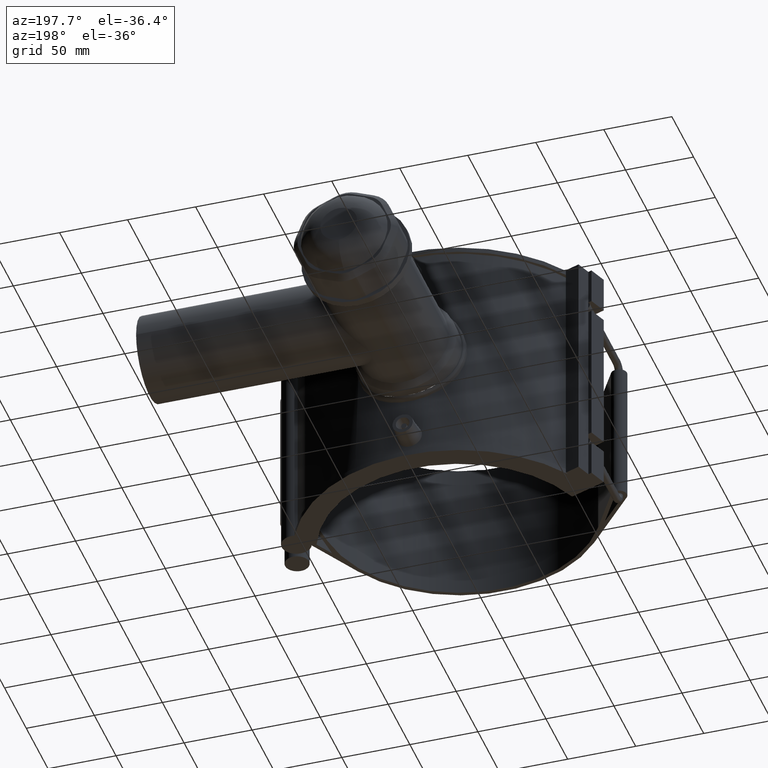
[diagram: clean part render]
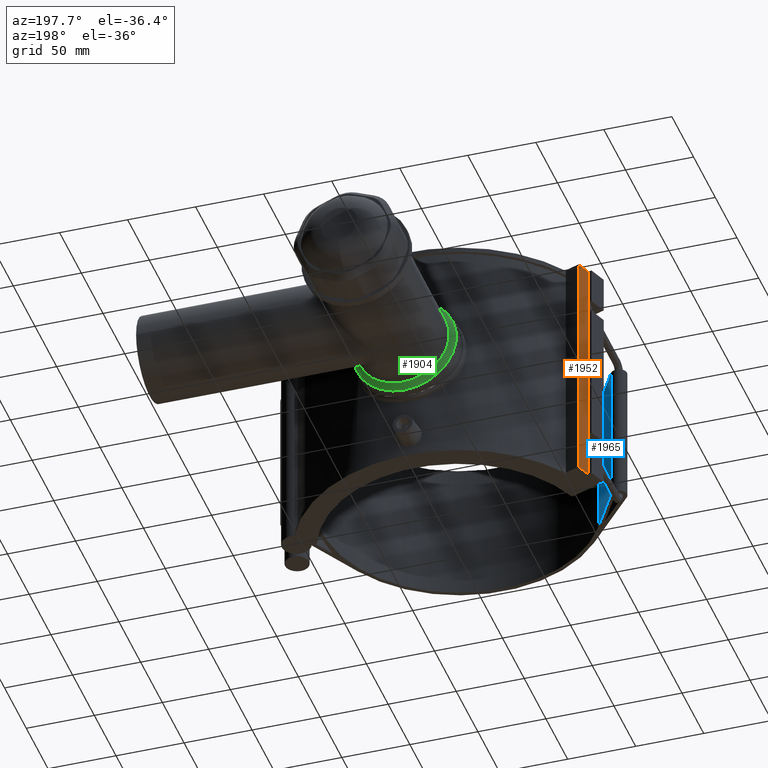
[diagram: same view with three faces highlighted in distinct colors, each labeled with its STEP entity id]
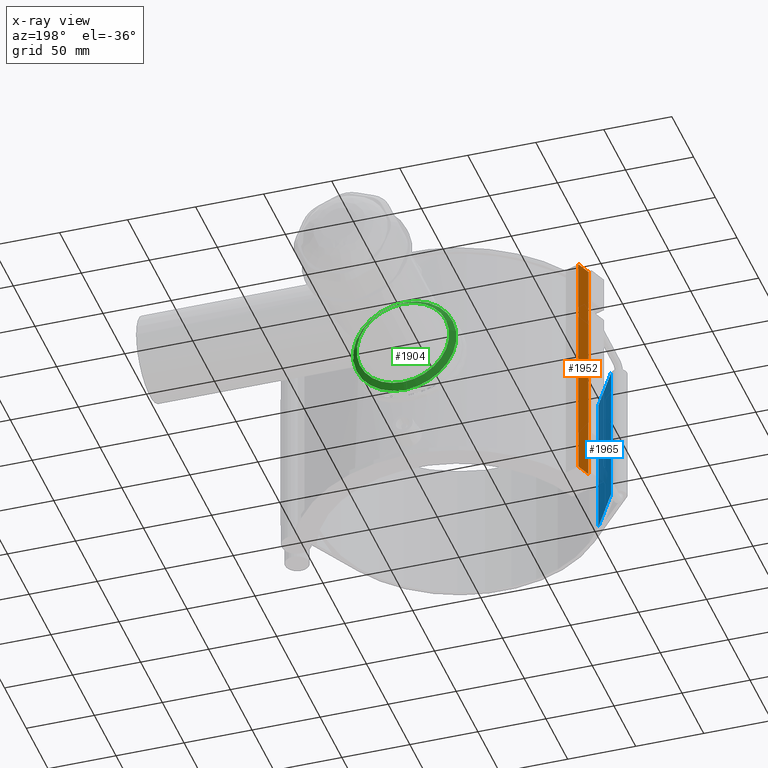
[diagram: x-ray of the same camera — body ghosted, the three highlighted faces saturated]
A machine part, auxiliary view with three faces highlighted in distinct colors.
The next image is the same camera in x-ray (body ghosted, the three faces saturated) — at least one of them is partly hidden behind the body in this view.
Their STEP definitions:

[orange] entity #1952 — the highlighted planar face has unit normal (-0.9397, 0.342, 0).
#116=LINE('',#3422,#277);
#117=LINE('',#3426,#278);
#127=LINE('',#3468,#288);
#128=LINE('',#3470,#289);
#130=LINE('',#3474,#291);
#148=LINE('',#3517,#309);
#152=LINE('',#3530,#313);
#155=LINE('',#3535,#316);
#174=LINE('',#3572,#335);
#175=LINE('',#3575,#336);
#176=LINE('',#3577,#337);
#177=LINE('',#3578,#338);
#277=VECTOR('',#2503,4.53640788952946);
#278=VECTOR('',#2506,4.53640788952951);
#288=VECTOR('',#2538,3.69179605523528);
#289=VECTOR('',#2541,0.17179605523526);
#291=VECTOR('',#2545,0.171796055235234);
#309=VECTOR('',#2585,3.69179605523522);
#313=VECTOR('',#2601,26.6);
#316=VECTOR('',#2606,106.);
#335=VECTOR('',#2637,26.6);
#336=VECTOR('',#2640,11.2);
#337=VECTOR('',#2641,176.);
#338=VECTOR('',#2642,11.2);
#531=FACE_OUTER_BOUND('',#673,.T.);
#673=EDGE_LOOP('',(#1635,#1636,#1637,#1638,#1639,#1640,#1641,#1642,#1643,
#1644,#1645,#1646));
#919=VERTEX_POINT('',#3414);
#920=VERTEX_POINT('',#3416);
#922=VERTEX_POINT('',#3424);
#923=VERTEX_POINT('',#3425);
#931=VERTEX_POINT('',#3454);
#936=VERTEX_POINT('',#3466);
#937=VERTEX_POINT('',#3472);
#951=VERTEX_POINT('',#3513);
#954=VERTEX_POINT('',#3529);
#967=VERTEX_POINT('',#3570);
#968=VERTEX_POINT('',#3574);
#969=VERTEX_POINT('',#3576);
#1138=EDGE_CURVE('',#920,#919,#116,.T.);
#1139=EDGE_CURVE('',#922,#923,#117,.T.);
#1157=EDGE_CURVE('',#919,#936,#127,.T.);
#1158=EDGE_CURVE('',#931,#920,#128,.T.);
#1160=EDGE_CURVE('',#923,#937,#130,.T.);
#1182=EDGE_CURVE('',#951,#922,#148,.T.);
#1188=EDGE_CURVE('',#954,#931,#152,.T.);
#1191=EDGE_CURVE('',#936,#951,#155,.T.);
#1210=EDGE_CURVE('',#937,#967,#174,.T.);
#1211=EDGE_CURVE('',#967,#968,#175,.T.);
#1212=EDGE_CURVE('',#969,#968,#176,.T.);
#1213=EDGE_CURVE('',#954,#969,#177,.T.);
#1635=ORIENTED_EDGE('',*,*,#1211,.T.);
#1636=ORIENTED_EDGE('',*,*,#1212,.F.);
#1637=ORIENTED_EDGE('',*,*,#1213,.F.);
#1638=ORIENTED_EDGE('',*,*,#1188,.T.);
#1639=ORIENTED_EDGE('',*,*,#1158,.T.);
#1640=ORIENTED_EDGE('',*,*,#1138,.T.);
#1641=ORIENTED_EDGE('',*,*,#1157,.T.);
#1642=ORIENTED_EDGE('',*,*,#1191,.T.);
#1643=ORIENTED_EDGE('',*,*,#1182,.T.);
#1644=ORIENTED_EDGE('',*,*,#1139,.T.);
#1645=ORIENTED_EDGE('',*,*,#1160,.T.);
#1646=ORIENTED_EDGE('',*,*,#1210,.T.);
#1852=PLANE('',#2142);
#1952=ADVANCED_FACE('',(#531),#1852,.T.);
#2142=AXIS2_PLACEMENT_3D('',#3573,#2638,#2639);
#2503=DIRECTION('',(0.,0.,1.));
#2506=DIRECTION('',(0.,0.,1.));
#2538=DIRECTION('',(0.,0.,1.));
#2541=DIRECTION('',(0.,0.,1.));
#2545=DIRECTION('',(0.,0.,1.));
#2585=DIRECTION('',(0.,0.,1.));
#2601=DIRECTION('',(0.,0.,1.));
#2606=DIRECTION('',(0.,0.,1.));
#2637=DIRECTION('',(0.,0.,1.));
#2638=DIRECTION('center_axis',(-0.939692620785908,0.34202014332567,0.));
#2639=DIRECTION('ref_axis',(-0.342020143325671,-0.939692620785908,0.));
#2640=DIRECTION('',(0.34202014332567,0.939692620785908,0.));
#2641=DIRECTION('',(0.,0.,1.));
#2642=DIRECTION('',(0.34202014332567,0.939692620785908,0.));
#3414=CARTESIAN_POINT('',(-112.861234115836,55.9766186353763,-56.6917960552353));
#3416=CARTESIAN_POINT('',(-112.861234115836,55.9766186353763,-61.2282039447647));
#3422=CARTESIAN_POINT('',(-112.861234115836,55.9766186353764,-88.));
#3424=CARTESIAN_POINT('',(-112.861234115836,55.9766186353764,56.6917960552352));
#3425=CARTESIAN_POINT('',(-112.861234115836,55.9766186353764,61.2282039447648));
#3426=CARTESIAN_POINT('',(-112.861234115836,55.9766186353764,-88.));
#3454=CARTESIAN_POINT('',(-112.861234115836,55.9766186353764,-61.4));
#3466=CARTESIAN_POINT('',(-112.861234115836,55.9766186353764,-53.));
#3468=CARTESIAN_POINT('',(-112.861234115836,55.9766186353764,-88.));
#3470=CARTESIAN_POINT('',(-112.861234115836,55.9766186353764,-88.));
#3472=CARTESIAN_POINT('',(-112.861234115836,55.9766186353764,61.4));
#3474=CARTESIAN_POINT('',(-112.861234115836,55.9766186353764,-88.));
#3513=CARTESIAN_POINT('',(-112.861234115836,55.9766186353764,53.));
#3517=CARTESIAN_POINT('',(-112.861234115836,55.9766186353764,-88.));
#3529=CARTESIAN_POINT('',(-112.861234115836,55.9766186353764,-88.));
#3530=CARTESIAN_POINT('',(-112.861234115836,55.9766186353764,-88.));
#3535=CARTESIAN_POINT('',(-112.861234115836,55.9766186353764,-88.));
#3570=CARTESIAN_POINT('',(-112.861234115836,55.9766186353764,88.));
#3572=CARTESIAN_POINT('',(-112.861234115836,55.9766186353764,-88.));
#3573=CARTESIAN_POINT('Origin',(-109.030608510589,66.5011759881785,-88.));
#3574=CARTESIAN_POINT('',(-109.030608510589,66.5011759881785,88.));
#3575=CARTESIAN_POINT('',(-111.374306140513,60.0619196719329,88.));
#3576=CARTESIAN_POINT('',(-109.030608510589,66.5011759881785,-88.));
#3577=CARTESIAN_POINT('',(-109.030608510589,66.5011759881785,-88.));
#3578=CARTESIAN_POINT('',(-112.861234115836,55.9766186353764,-88.));

[blue] entity #1965 — the highlighted planar face has unit normal (0.8593, 0.5115, 0).
#104=LINE('',#3356,#265);
#109=LINE('',#3376,#270);
#193=LINE('',#3619,#354);
#194=LINE('',#3620,#355);
#265=VECTOR('',#2451,39.7006283693455);
#270=VECTOR('',#2468,39.7006283693455);
#354=VECTOR('',#2696,105.6);
#355=VECTOR('',#2697,105.6);
#544=FACE_OUTER_BOUND('',#686,.T.);
#686=EDGE_LOOP('',(#1707,#1708,#1709,#1710));
#894=VERTEX_POINT('',#3353);
#895=VERTEX_POINT('',#3355);
#903=VERTEX_POINT('',#3373);
#904=VERTEX_POINT('',#3375);
#1108=EDGE_CURVE('',#894,#895,#104,.T.);
#1118=EDGE_CURVE('',#903,#904,#109,.T.);
#1235=EDGE_CURVE('',#894,#904,#193,.T.);
#1236=EDGE_CURVE('',#895,#903,#194,.T.);
#1707=ORIENTED_EDGE('',*,*,#1235,.T.);
#1708=ORIENTED_EDGE('',*,*,#1118,.F.);
#1709=ORIENTED_EDGE('',*,*,#1236,.F.);
#1710=ORIENTED_EDGE('',*,*,#1108,.F.);
#1861=PLANE('',#2161);
#1965=ADVANCED_FACE('',(#544),#1861,.T.);
#2161=AXIS2_PLACEMENT_3D('',#3618,#2694,#2695);
#2451=DIRECTION('',(0.511479804338621,-0.859295298342617,0.));
#2468=DIRECTION('',(-0.511479804338621,0.859295298342617,0.));
#2694=DIRECTION('center_axis',(0.859295298342616,0.511479804338621,0.));
#2695=DIRECTION('ref_axis',(-0.511479804338621,0.859295298342616,0.));
#2696=DIRECTION('',(0.,0.,1.));
#2697=DIRECTION('',(0.,0.,1.));
#3353=CARTESIAN_POINT('',(-106.235599464735,-17.033417134836,-52.8));
#3355=CARTESIAN_POINT('',(-85.9295298342617,-51.1479804338621,-52.8));
#3356=CARTESIAN_POINT('',(-85.9295298342617,-51.1479804338621,-52.8));
#3373=CARTESIAN_POINT('',(-85.9295298342617,-51.1479804338621,52.8));
#3375=CARTESIAN_POINT('',(-106.235599464735,-17.033417134836,52.8));
#3376=CARTESIAN_POINT('',(-85.9295298342617,-51.1479804338621,52.8));
#3618=CARTESIAN_POINT('Origin',(-85.9295298342617,-51.1479804338621,0.));
#3619=CARTESIAN_POINT('',(-106.235599464735,-17.033417134836,0.));
#3620=CARTESIAN_POINT('',(-85.9295298342617,-51.1479804338621,0.));

[green] entity #1904 — the highlighted conical surface has half-angle 45 deg.
#36=CONICAL_SURFACE('',#2052,36.,45.);
#368=FACE_BOUND('',#612,.T.);
#483=FACE_OUTER_BOUND('',#611,.T.);
#611=EDGE_LOOP('',(#1391));
#612=EDGE_LOOP('',(#1392));
#734=CIRCLE('',#2000,38.);
#758=CIRCLE('',#2053,34.);
#821=VERTEX_POINT('',#2935);
#869=VERTEX_POINT('',#3216);
#999=EDGE_CURVE('',#821,#821,#734,.T.);
#1071=EDGE_CURVE('',#869,#869,#758,.T.);
#1391=ORIENTED_EDGE('',*,*,#999,.T.);
#1392=ORIENTED_EDGE('',*,*,#1071,.F.);
#1904=ADVANCED_FACE('',(#483,#368),#36,.T.);
#2000=AXIS2_PLACEMENT_3D('',#2936,#2218,#2219);
#2052=AXIS2_PLACEMENT_3D('',#3215,#2367,#2368);
#2053=AXIS2_PLACEMENT_3D('',#3217,#2369,#2370);
#2218=DIRECTION('center_axis',(0.,1.,3.06161699786838E-16));
#2219=DIRECTION('ref_axis',(0.,0.,-1.));
#2367=DIRECTION('center_axis',(0.,-1.,-3.06161699786838E-16));
#2368=DIRECTION('ref_axis',(0.,1.44576358232674E-16,-1.));
#2369=DIRECTION('center_axis',(0.,1.,3.06161699786838E-16));
#2370=DIRECTION('ref_axis',(1.,0.,0.));
#2935=CARTESIAN_POINT('',(4.65365783675994E-15,125.25,38.));
#2936=CARTESIAN_POINT('Origin',(0.,125.25,7.73058291961768E-15));
#3215=CARTESIAN_POINT('Origin',(0.,127.25,8.34290631919135E-15));
#3216=CARTESIAN_POINT('',(0.,129.25,34.));
#3217=CARTESIAN_POINT('Origin',(0.,129.25,8.95522971876503E-15));